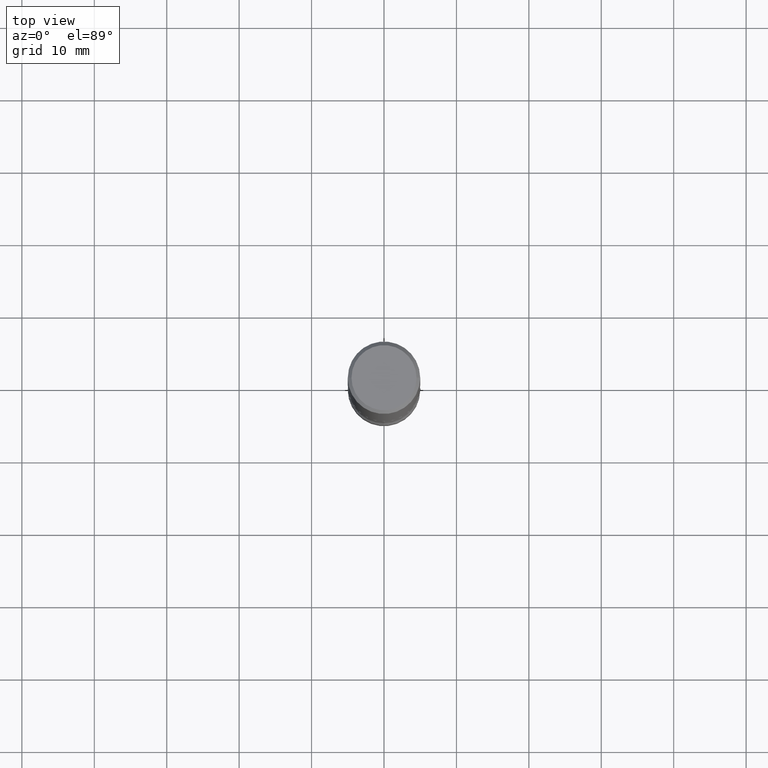
[diagram: clean part render]
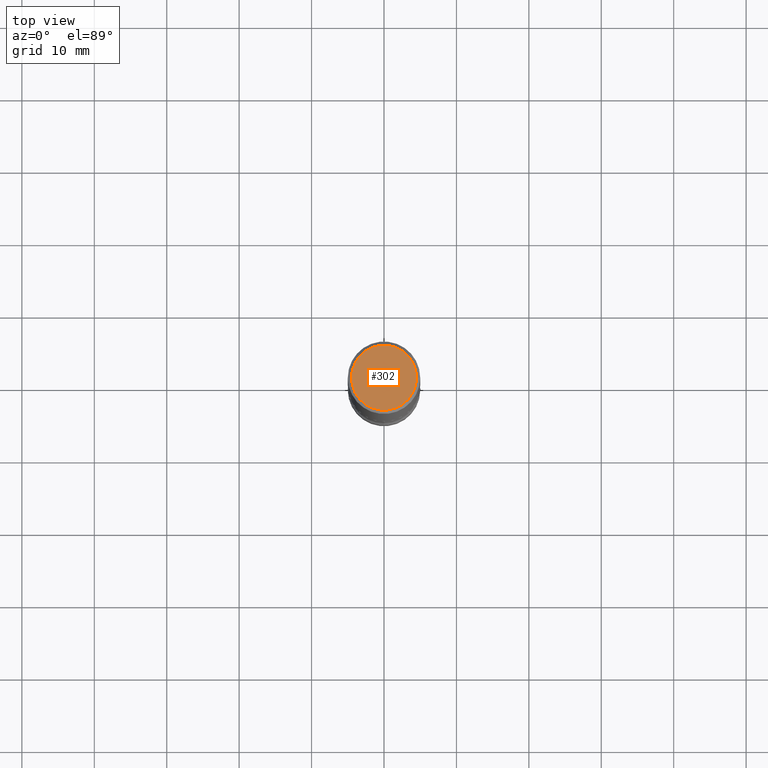
[diagram: same view with one face highlighted and labeled with its STEP entity id]
A machine part, top view. The second image highlights one B-rep face of the part: STEP entity #302.
In plain terms, the highlighted planar face has unit normal (0, -0, -1).
Its self-contained STEP definition (entity closure, byte-faithful):
#54 = DIRECTION ( 'NONE',  ( -2.445468806185136597E-29, 3.491481338843145583E-15, 1.000000000000000000 ) ) ;
#93 = DIRECTION ( 'NONE',  ( -2.445468806185136597E-29, 3.491481338843145583E-15, 1.000000000000000000 ) ) ;
#172 = CARTESIAN_POINT ( 'NONE',  ( -0.1768499999999998407, 1.269851762937246464E-15, 4.268512490091652920E-18 ) ) ;
#196 = CIRCLE ( 'NONE', #415, 0.1768499999999998407 ) ;
#234 = DIRECTION ( 'NONE',  ( 1.000000000000000000, -6.982962677686266711E-15, 4.875932113059882493E-29 ) ) ;
#239 = DIRECTION ( 'NONE',  ( 2.438088387897960049E-29, -3.491481338843145188E-15, -1.000000000000000000 ) ) ;
#256 = VERTEX_POINT ( 'NONE', #534 ) ;
#262 = EDGE_CURVE ( 'NONE', #256, #477, #552, .T. ) ;
#276 = CARTESIAN_POINT ( 'NONE',  ( -1.043851414335219820E-46, 1.490343170380447200E-32, 4.268512490100411279E-18 ) ) ;
#279 = FACE_OUTER_BOUND ( 'NONE', #338, .T. ) ;
#302 = ADVANCED_FACE ( 'NONE', ( #279 ), #450, .F. ) ;
#306 = AXIS2_PLACEMENT_3D ( 'NONE', #494, #239, #412 ) ;
#338 = EDGE_LOOP ( 'NONE', ( #547, #426 ) ) ;
#406 = CARTESIAN_POINT ( 'NONE',  ( -1.043851414335219820E-46, 1.490343170380447200E-32, 4.268512490100411279E-18 ) ) ;
#412 = DIRECTION ( 'NONE',  ( -1.000000000000000000, 6.982962677686265922E-15, -4.876176775795935793E-29 ) ) ;
#415 = AXIS2_PLACEMENT_3D ( 'NONE', #406, #93, #441 ) ;
#419 = EDGE_CURVE ( 'NONE', #477, #256, #196, .T. ) ;
#426 = ORIENTED_EDGE ( 'NONE', *, *, #262, .T. ) ;
#441 = DIRECTION ( 'NONE',  ( 1.000000000000000000, -6.982962677686266711E-15, 4.875932113059882493E-29 ) ) ;
#450 = PLANE ( 'NONE',  #306 ) ;
#477 = VERTEX_POINT ( 'NONE', #172 ) ;
#494 = CARTESIAN_POINT ( 'NONE',  ( 1.234936949548815012E-15, 0.1768499999999998407, -6.153342185293596592E-16 ) ) ;
#519 = AXIS2_PLACEMENT_3D ( 'NONE', #276, #54, #234 ) ;
#534 = CARTESIAN_POINT ( 'NONE',  ( 0.1768499999999998407, -1.316798864272041352E-15, 4.268512490109333727E-18 ) ) ;
#547 = ORIENTED_EDGE ( 'NONE', *, *, #419, .T. ) ;
#552 = CIRCLE ( 'NONE', #519, 0.1768499999999998407 ) ;